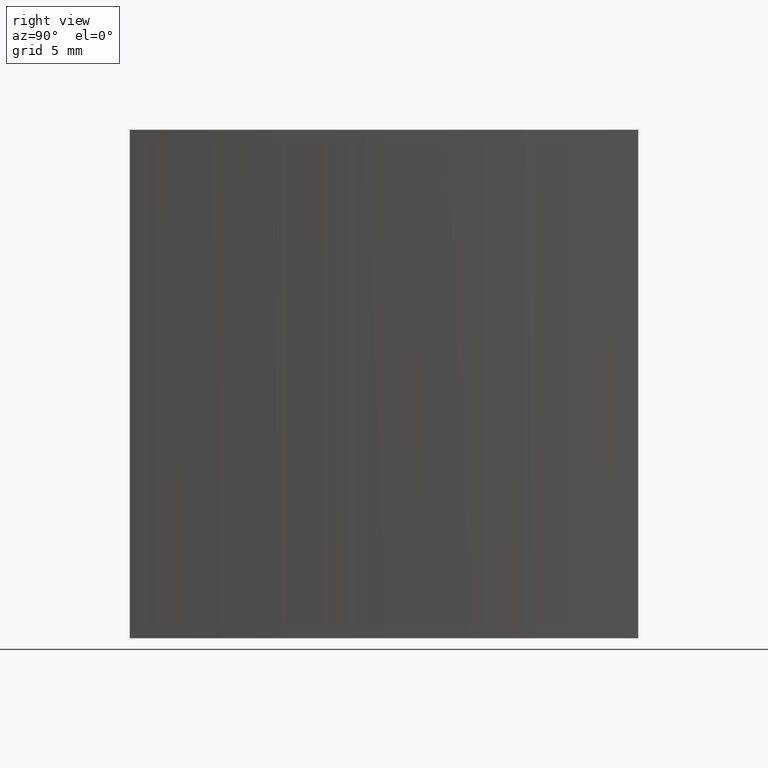
[diagram: clean part render]
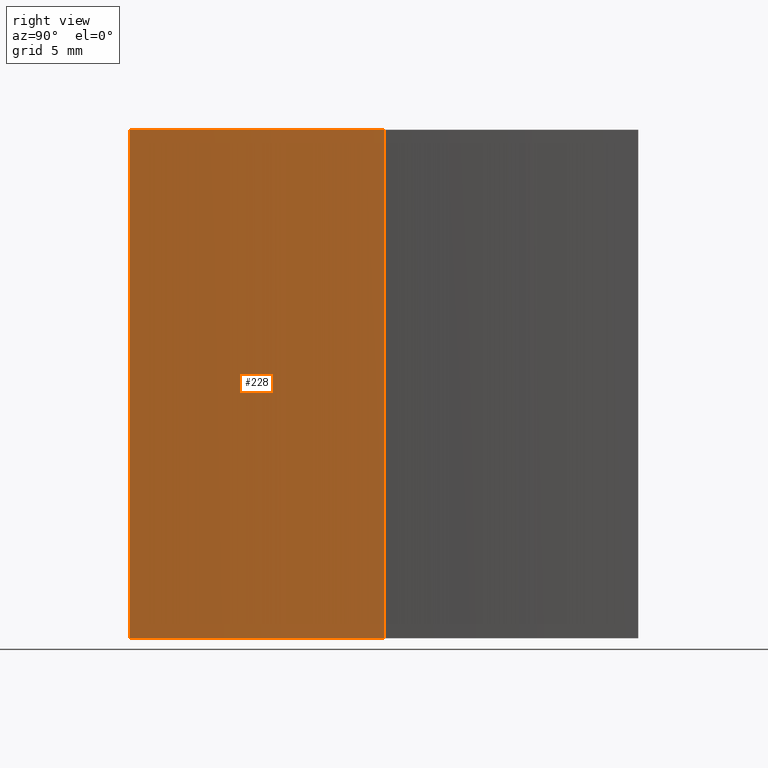
[diagram: same view with one face highlighted and labeled with its STEP entity id]
A machine part, right view. The second image highlights one B-rep face of the part: STEP entity #228.
In plain terms, the highlighted cylindrical surface (partial cylindrical patch) has radius 150 mm, axis along (-0, -0, -1).
Its self-contained STEP definition (entity closure, byte-faithful):
#4 = FACE_OUTER_BOUND ( 'NONE', #62, .T. ) ;
#7 = VERTEX_POINT ( 'NONE', #235 ) ;
#12 = DIRECTION ( 'NONE',  ( -1.000000000000000000, 0.0000000000000000000, 0.0000000000000000000 ) ) ;
#22 = LINE ( 'NONE', #52, #170 ) ;
#24 = AXIS2_PLACEMENT_3D ( 'NONE', #177, #118, #70 ) ;
#28 = CARTESIAN_POINT ( 'NONE',  ( 440.7071356313041400, 66.85792926776707600, 0.0000000000000000000 ) ) ;
#47 = DIRECTION ( 'NONE',  ( -0.0000000000000000000, -0.0000000000000000000, -1.000000000000000000 ) ) ;
#52 = CARTESIAN_POINT ( 'NONE',  ( 291.2288763425366400, 54.35792926776709800, 25.00000000000000000 ) ) ;
#55 = EDGE_CURVE ( 'NONE', #106, #7, #73, .T. ) ;
#61 = ORIENTED_EDGE ( 'NONE', *, *, #162, .F. ) ;
#62 = EDGE_LOOP ( 'NONE', ( #61, #129, #144, #180 ) ) ;
#64 = LINE ( 'NONE', #84, #202 ) ;
#67 = DIRECTION ( 'NONE',  ( -0.0000000000000000000, -0.0000000000000000000, -1.000000000000000000 ) ) ;
#70 = DIRECTION ( 'NONE',  ( 1.000000000000000000, 0.0000000000000000000, 0.0000000000000000000 ) ) ;
#73 = CIRCLE ( 'NONE', #205, 150.0000000000000300 ) ;
#84 = CARTESIAN_POINT ( 'NONE',  ( 290.7071356313041400, 66.85792926776707600, 25.00000000000000000 ) ) ;
#87 = CARTESIAN_POINT ( 'NONE',  ( 291.2288763425366400, 54.35792926776709800, 0.0000000000000000000 ) ) ;
#106 = VERTEX_POINT ( 'NONE', #87 ) ;
#107 = EDGE_CURVE ( 'NONE', #185, #106, #22, .T. ) ;
#109 = AXIS2_PLACEMENT_3D ( 'NONE', #158, #116, #12 ) ;
#116 = DIRECTION ( 'NONE',  ( -0.0000000000000000000, -0.0000000000000000000, -1.000000000000000000 ) ) ;
#118 = DIRECTION ( 'NONE',  ( -0.0000000000000000000, -0.0000000000000000000, -1.000000000000000000 ) ) ;
#119 = DIRECTION ( 'NONE',  ( 1.000000000000000000, 0.0000000000000000000, 0.0000000000000000000 ) ) ;
#124 = DIRECTION ( 'NONE',  ( -0.0000000000000000000, -0.0000000000000000000, -1.000000000000000000 ) ) ;
#126 = EDGE_CURVE ( 'NONE', #185, #222, #128, .T. ) ;
#128 = CIRCLE ( 'NONE', #24, 150.0000000000000300 ) ;
#129 = ORIENTED_EDGE ( 'NONE', *, *, #126, .F. ) ;
#136 = CARTESIAN_POINT ( 'NONE',  ( 290.7071356313041400, 66.85792926776707600, 25.00000000000000000 ) ) ;
#140 = CARTESIAN_POINT ( 'NONE',  ( 291.2288763425366400, 54.35792926776709800, 25.00000000000000000 ) ) ;
#144 = ORIENTED_EDGE ( 'NONE', *, *, #107, .T. ) ;
#152 = CYLINDRICAL_SURFACE ( 'NONE', #109, 150.0000000000000300 ) ;
#158 = CARTESIAN_POINT ( 'NONE',  ( 440.7071356313041400, 66.85792926776707600, 25.00000000000000000 ) ) ;
#162 = EDGE_CURVE ( 'NONE', #222, #7, #64, .T. ) ;
#170 = VECTOR ( 'NONE', #124, 1000.000000000000000 ) ;
#177 = CARTESIAN_POINT ( 'NONE',  ( 440.7071356313041400, 66.85792926776707600, 25.00000000000000000 ) ) ;
#180 = ORIENTED_EDGE ( 'NONE', *, *, #55, .T. ) ;
#185 = VERTEX_POINT ( 'NONE', #140 ) ;
#202 = VECTOR ( 'NONE', #67, 1000.000000000000000 ) ;
#205 = AXIS2_PLACEMENT_3D ( 'NONE', #28, #47, #119 ) ;
#222 = VERTEX_POINT ( 'NONE', #136 ) ;
#228 = ADVANCED_FACE ( 'NONE', ( #4 ), #152, .F. ) ;
#235 = CARTESIAN_POINT ( 'NONE',  ( 290.7071356313041400, 66.85792926776707600, 0.0000000000000000000 ) ) ;